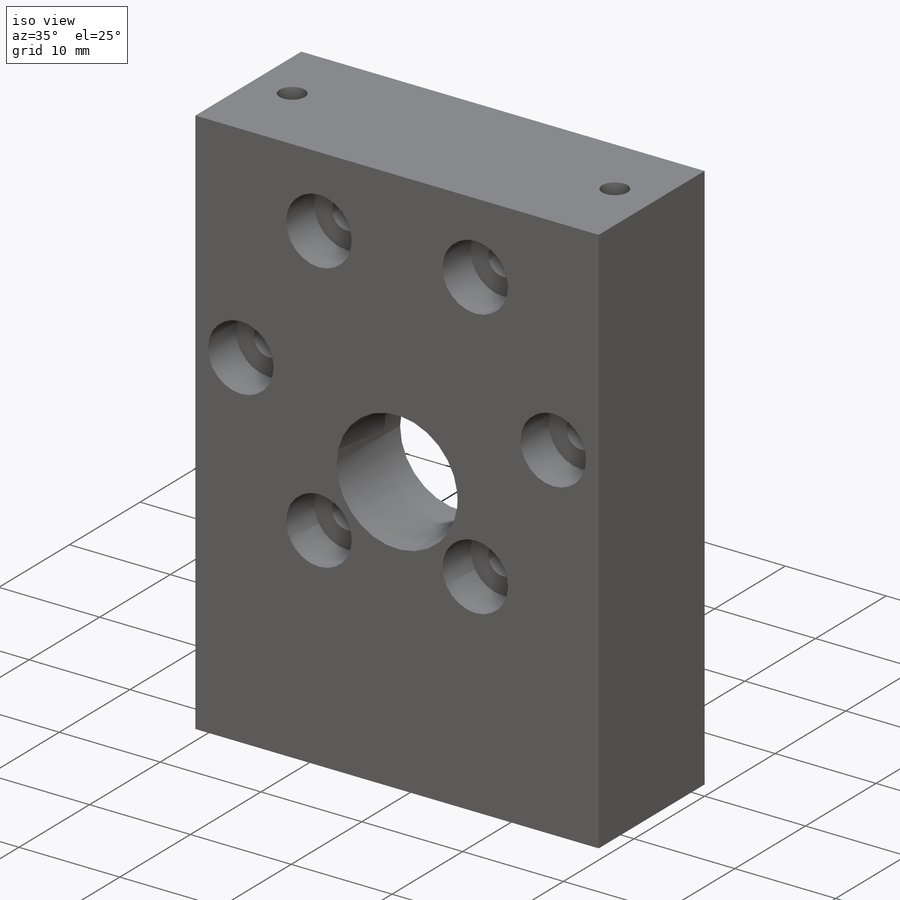
[diagram: iso view]
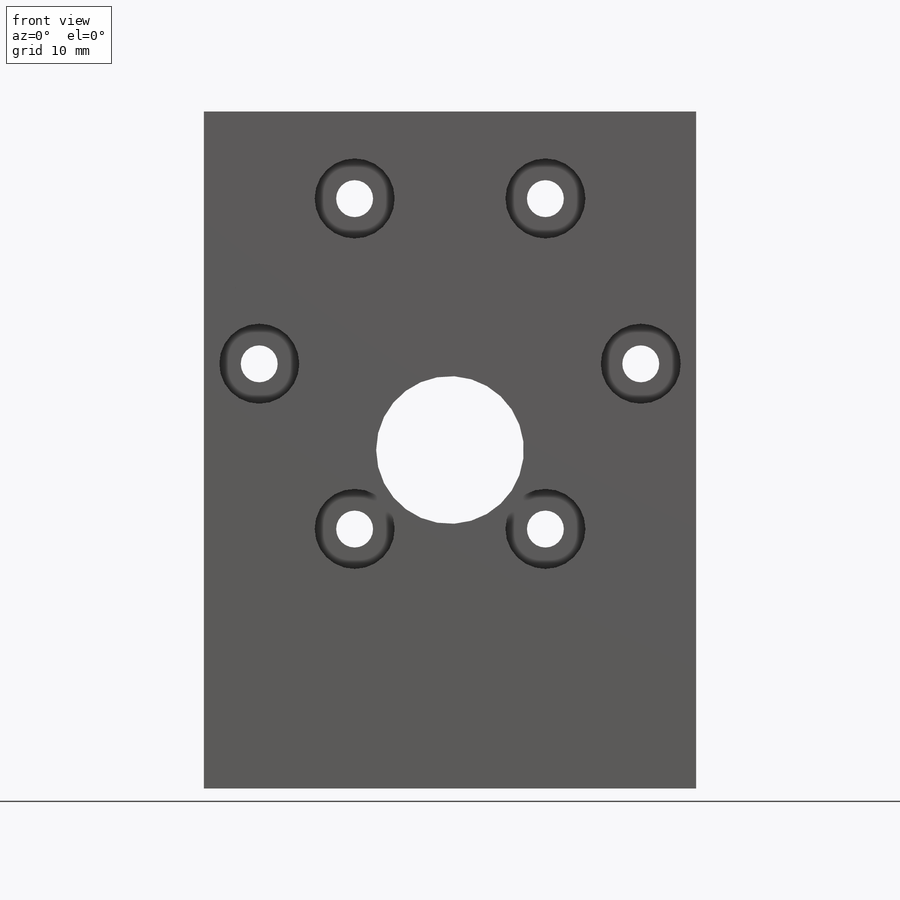
[diagram: front view]
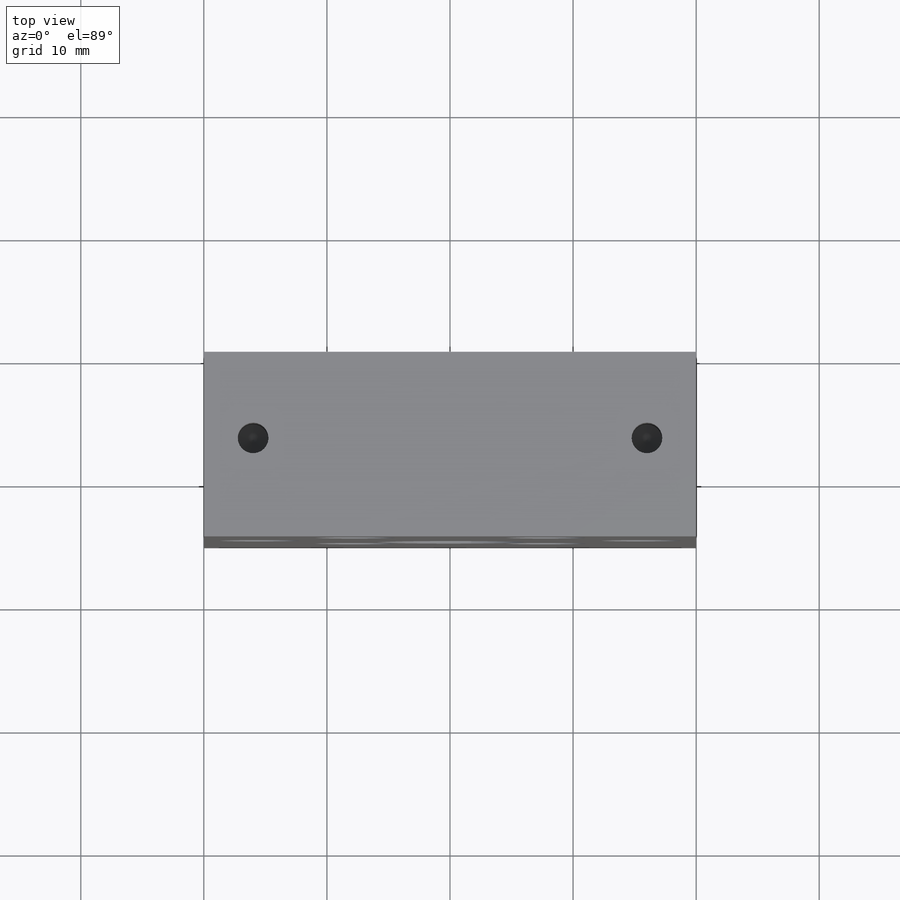
[diagram: top view]
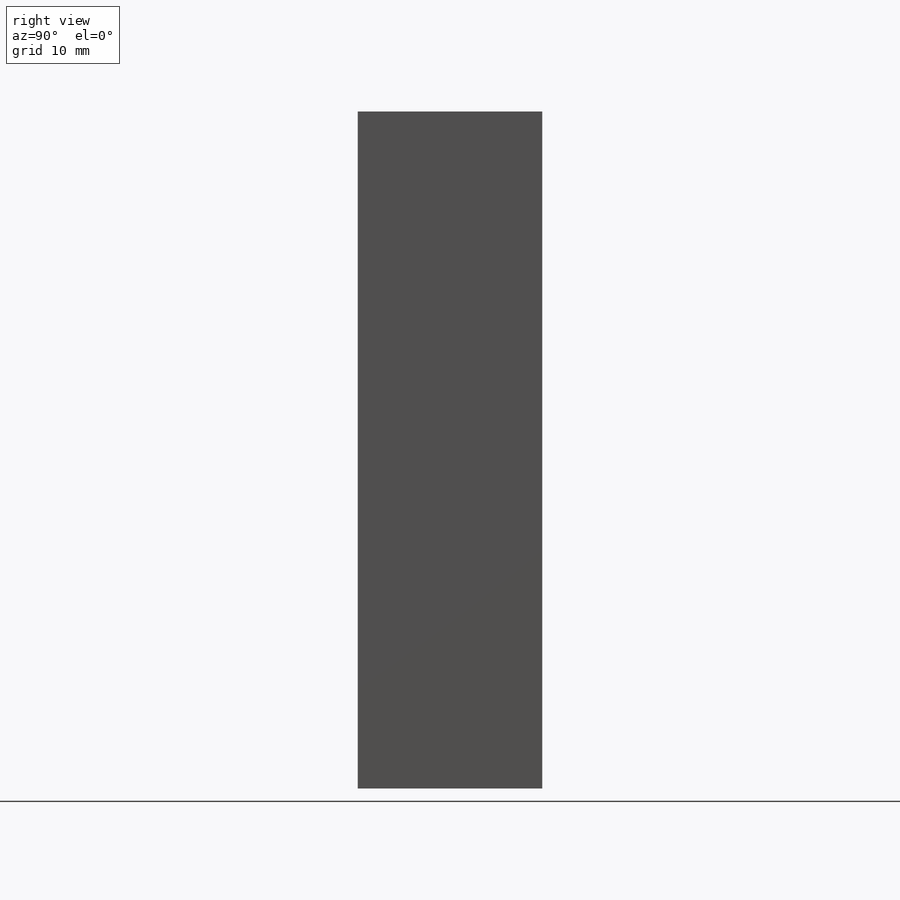
[diagram: right view]
SOLIDWORKS PART (.sldprt)
format: sldprt  version: not decoded by parser v0  size: 507,904 bytes
history: native  units: mm
features: sketch x10, thread x4, cut_extrude x3, extrude x2, hole x2, material x1, fillet x1 (+12 scaffold rows collapsed)
feature tree (35):
  scaffold x12  (default folders/planes/origin — collapsed)
  material  "Material <not specified>"
  sketch  "Sketch1"  dims[c1.D3=12.0mm c1.D5=3.0mm c1.D1=~26.112783mm c1.D2=~17.577495mm c2.D1=40.0mm c2.D2=55.0mm c2.D4=7.0mm c2.D6=15.5mm c2.D7=6.0]
  extrude  "Boss-Extrude1"  Depth=15mm
  sketch  "Sketch2"  dims[D1=~2.693726mm]
  cut_extrude  "Cut-Extrude1"  Depth=6mm
  hole  "M3 Tapped Hole1"  Diameter=2.5mm Depth=10mm
  sketch  "Sketch4"  dims[c1.D1=15.0mm c1.D2=15.0mm c1.D3=8.0mm c1.D4=5.0mm c2.D1=10.0mm c2.D2=10.0mm c2.D4=8.0mm]
  sketch  "Sketch3"  dims[hole-wizard template sketch: 47 standard entries collapsed; hole parameters kept: c15.Tap Drill Depth=10.0mm c15.D3=~14.816244mm c15.Drill Angle=118.0deg]
  thread  "Hole Thread1"  Diameter=9mm  [1 undecoded]
  thread  "Hole Thread3"  Diameter=9mm  [1 undecoded]
  hole  "M3 Tapped Hole2"  Diameter=2.5mm Depth=8mm
  sketch  "Sketch6"  dims[c1.D1=15.0mm c1.D2=15.0mm c1.D3=3.0mm c1.D4=30.0mm c2.D1=8.0mm c2.D2=4.0mm c2.D3=4.0mm c2.D4=4.0mm c2.D5=~0.238566mm]
  sketch  "Sketch5"  dims[hole-wizard template sketch: 50 standard entries collapsed; hole parameters above]
  thread  "Hole Thread5"  Diameter=7.5mm  [1 undecoded]
  thread  "Hole Thread6"  Diameter=7.5mm  [1 undecoded]
  sketch  "Sketch7"  dims[c1.D1=6.5mm c1.D2=~1.619005mm c2.D2=6.0]
  cut_extrude  "Cut-Extrude2"  Depth=4mm
  sketch  "Sketch8"  dims[D1=~26.720912mm]
  sketch  "Sketch9"  dims[c1.D3=41.0mm c1.D5=~20.500002mm c1.D4=~42.978762mm c1.D1=20.5mm c1.D7=20.5mm c1.D8=~20.493717mm c1.D9=20.5mm c1.D6=~24.326479mm c1.D2=~25.245194mm c1.D10=20.5mm c1.D11=20.5mm c1.D15=20.5mm c1.D14=20.5mm c2.D10=37.0mm c2.D11=20.5mm c2.D1=2.0mm c2.D2=2.0mm c2.D3=~24.836565mm c2.D4=2.0mm c2.D5=~8.114875mm c3.D3=2.0mm c3.D1=2.0mm c3.D2=2.0mm c3.D4=2.0mm c3.D5=2.0mm c3.D6=2.0mm c3.D10=12.0mm c4.D6=~0.948172mm c4.D11=~3.670723mm c5.D6=2.0mm c5.D11=2.0mm c5.D2=2.0mm c5.D1=2.0mm c6.D2=~2.536642mm c6.D1=2.0mm c7.D2=2.0mm c7.D3=2.0mm c7.D4=2.0mm c7.D5=2.0mm c7.D6=2.0mm c7.D7=2.0mm c7.D8=2.0mm c7.D9=2.0mm c7.D12=6.5mm c7.D13=6.5mm c7.D14=~6.674242mm c7.D15=~12.00014mm c7.D1=2.0mm c8.D2=2.0mm c8.D3=2.0mm c8.D4=4.5mm c8.D5=2.0mm c8.D6=4.5mm c8.D7=2.0mm c8.D8=2.0mm c8.D9=2.0mm c8.D10=2.0mm]
  cut_extrude  "Cut-Extrude3"  Depth=12mm
  fillet  "Fillet1"  Radius=2mm
  sketch  "Sketch10"  dims[D1=3.0mm D2=3.0mm D3=7.0mm]
  extrude  "Boss-Extrude2"  Depth=15mm
decode coverage: 22 of 22 modeling features carry decoded parameters
note: ~ marks probable driven/reference dimensions
note: 4 parameter values undecoded
note: suppression state not decoded; provenance and decode notes live in map.json
